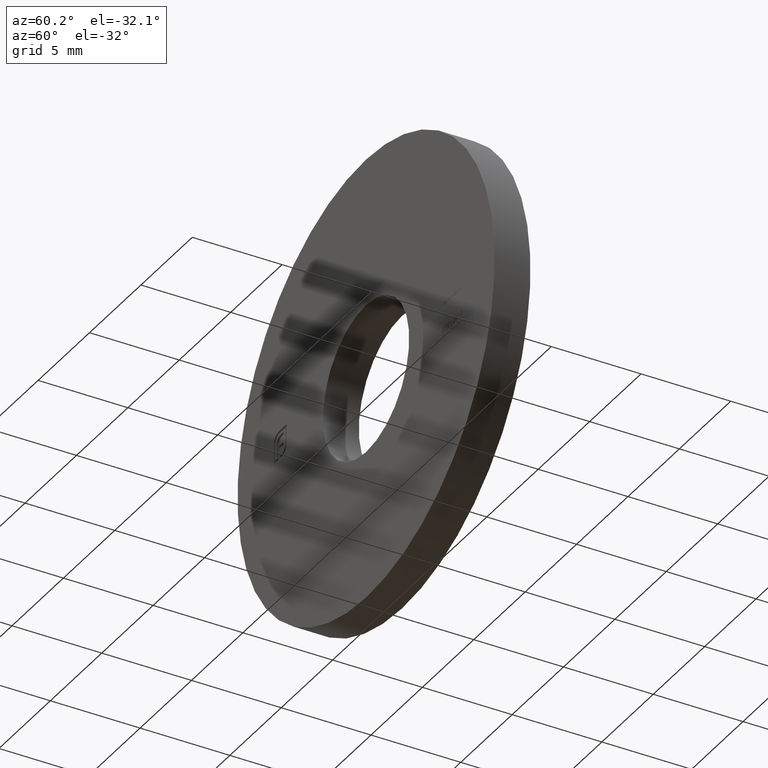
[diagram: clean part render]
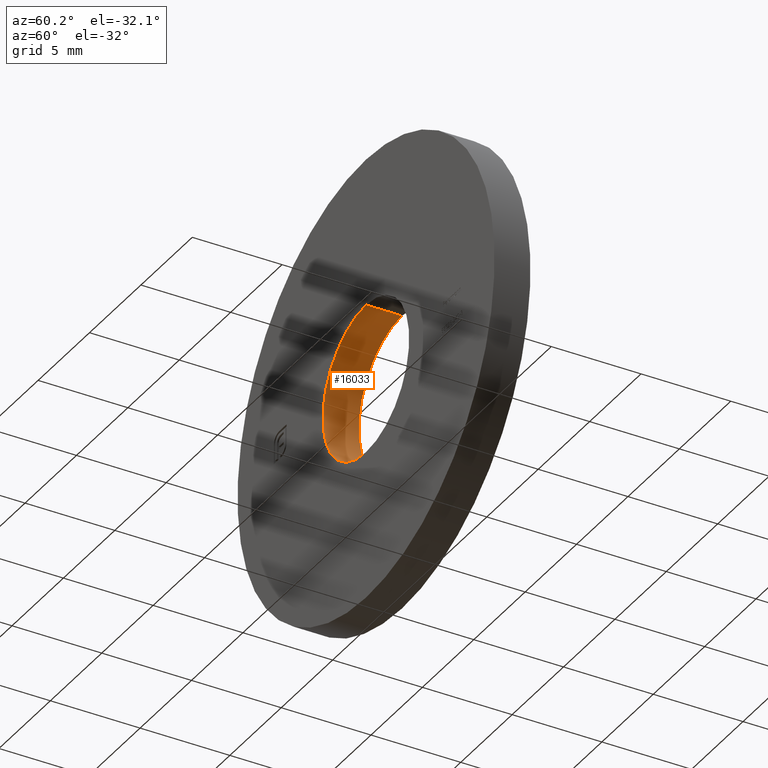
[diagram: same view with one face highlighted and labeled with its STEP entity id]
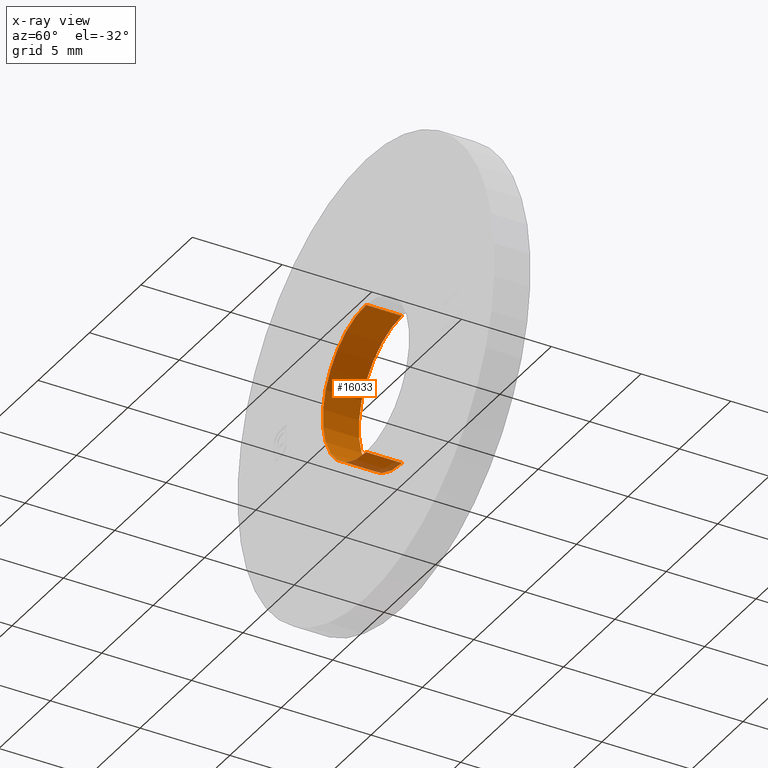
[diagram: x-ray of the same camera — body ghosted, the highlighted face saturated]
A machine part, auxiliary view. The second image highlights one B-rep face of the part: STEP entity #16033.
The next image is the same camera in x-ray: the body ghosted, the highlighted face saturated — about 2% of this face is hidden behind the body in this view.
In plain terms, the highlighted cylindrical surface (partial cylindrical patch) has radius 4.2 mm, axis along (-0, -1, -0).
Its self-contained STEP definition (entity closure, byte-faithful):
#54 = CARTESIAN_POINT ( 'NONE',  ( 5.143516556418883914E-16, -1.000000000000000000, 4.200000000000000178 ) ) ;
#353 = CIRCLE ( 'NONE', #5068, 4.200000000000000178 ) ;
#459 = EDGE_CURVE ( 'NONE', #16012, #13977, #3040, .T. ) ;
#856 = LINE ( 'NONE', #11048, #1681 ) ;
#894 = VERTEX_POINT ( 'NONE', #54 ) ;
#1681 = VECTOR ( 'NONE', #2986, 1000.000000000000000 ) ;
#1885 = CARTESIAN_POINT ( 'NONE',  ( 0.000000000000000000, 1.000000000000000000, -4.200000000000000178 ) ) ;
#2439 = EDGE_LOOP ( 'NONE', ( #4016, #12383, #6040, #5039 ) ) ;
#2808 = CARTESIAN_POINT ( 'NONE',  ( 0.000000000000000000, -1.000000000000000000, 0.000000000000000000 ) ) ;
#2820 = AXIS2_PLACEMENT_3D ( 'NONE', #13123, #14516, #5158 ) ;
#2986 = DIRECTION ( 'NONE',  ( -0.000000000000000000, -1.000000000000000000, -0.000000000000000000 ) ) ;
#3040 = CIRCLE ( 'NONE', #2820, 4.200000000000000178 ) ;
#3442 = DIRECTION ( 'NONE',  ( 0.000000000000000000, 0.000000000000000000, -1.000000000000000000 ) ) ;
#4016 = ORIENTED_EDGE ( 'NONE', *, *, #459, .T. ) ;
#5039 = ORIENTED_EDGE ( 'NONE', *, *, #13928, .F. ) ;
#5068 = AXIS2_PLACEMENT_3D ( 'NONE', #2808, #11963, #12033 ) ;
#5158 = DIRECTION ( 'NONE',  ( 0.000000000000000000, 0.000000000000000000, 1.000000000000000000 ) ) ;
#6040 = ORIENTED_EDGE ( 'NONE', *, *, #11006, .F. ) ;
#8333 = CARTESIAN_POINT ( 'NONE',  ( 0.000000000000000000, 1.000000000000000000, -4.200000000000000178 ) ) ;
#9223 = AXIS2_PLACEMENT_3D ( 'NONE', #12304, #13862, #3442 ) ;
#9226 = VECTOR ( 'NONE', #10159, 1000.000000000000000 ) ;
#9280 = VERTEX_POINT ( 'NONE', #14849 ) ;
#9619 = CYLINDRICAL_SURFACE ( 'NONE', #9223, 4.200000000000000178 ) ;
#10061 = FACE_OUTER_BOUND ( 'NONE', #2439, .T. ) ;
#10092 = LINE ( 'NONE', #1885, #9226 ) ;
#10159 = DIRECTION ( 'NONE',  ( -0.000000000000000000, -1.000000000000000000, -0.000000000000000000 ) ) ;
#11006 = EDGE_CURVE ( 'NONE', #9280, #894, #353, .T. ) ;
#11048 = CARTESIAN_POINT ( 'NONE',  ( 5.143516556418883914E-16, 1.000000000000000000, 4.200000000000000178 ) ) ;
#11625 = CARTESIAN_POINT ( 'NONE',  ( 5.143516556418883914E-16, 1.000000000000000000, 4.200000000000000178 ) ) ;
#11963 = DIRECTION ( 'NONE',  ( 0.000000000000000000, 1.000000000000000000, 0.000000000000000000 ) ) ;
#12033 = DIRECTION ( 'NONE',  ( 0.000000000000000000, 0.000000000000000000, 1.000000000000000000 ) ) ;
#12304 = CARTESIAN_POINT ( 'NONE',  ( 0.000000000000000000, 1.000000000000000000, 0.000000000000000000 ) ) ;
#12383 = ORIENTED_EDGE ( 'NONE', *, *, #15136, .T. ) ;
#13123 = CARTESIAN_POINT ( 'NONE',  ( 0.000000000000000000, 1.000000000000000000, 0.000000000000000000 ) ) ;
#13862 = DIRECTION ( 'NONE',  ( -0.000000000000000000, -1.000000000000000000, -0.000000000000000000 ) ) ;
#13928 = EDGE_CURVE ( 'NONE', #16012, #9280, #10092, .T. ) ;
#13977 = VERTEX_POINT ( 'NONE', #11625 ) ;
#14516 = DIRECTION ( 'NONE',  ( 0.000000000000000000, 1.000000000000000000, 0.000000000000000000 ) ) ;
#14849 = CARTESIAN_POINT ( 'NONE',  ( 0.000000000000000000, -1.000000000000000000, -4.200000000000000178 ) ) ;
#15136 = EDGE_CURVE ( 'NONE', #13977, #894, #856, .T. ) ;
#16012 = VERTEX_POINT ( 'NONE', #8333 ) ;
#16033 = ADVANCED_FACE ( 'NONE', ( #10061 ), #9619, .F. ) ;